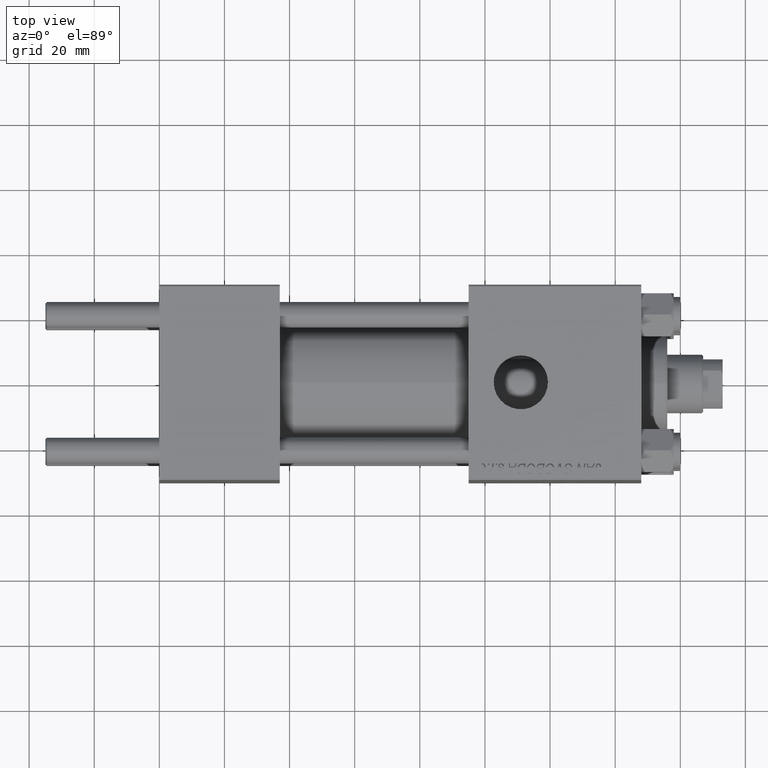
[diagram: clean part render]
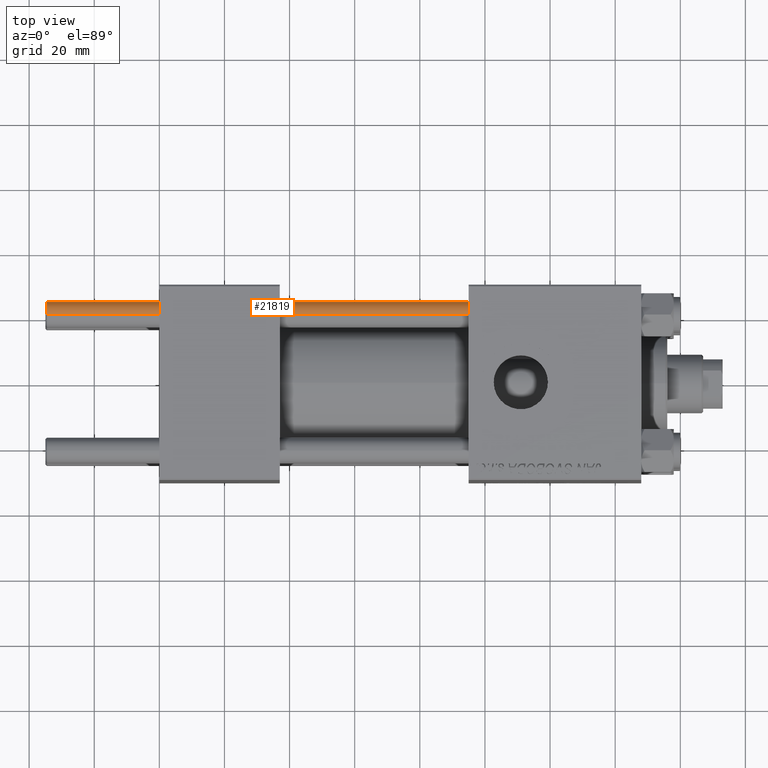
[diagram: same view with one face highlighted and labeled with its STEP entity id]
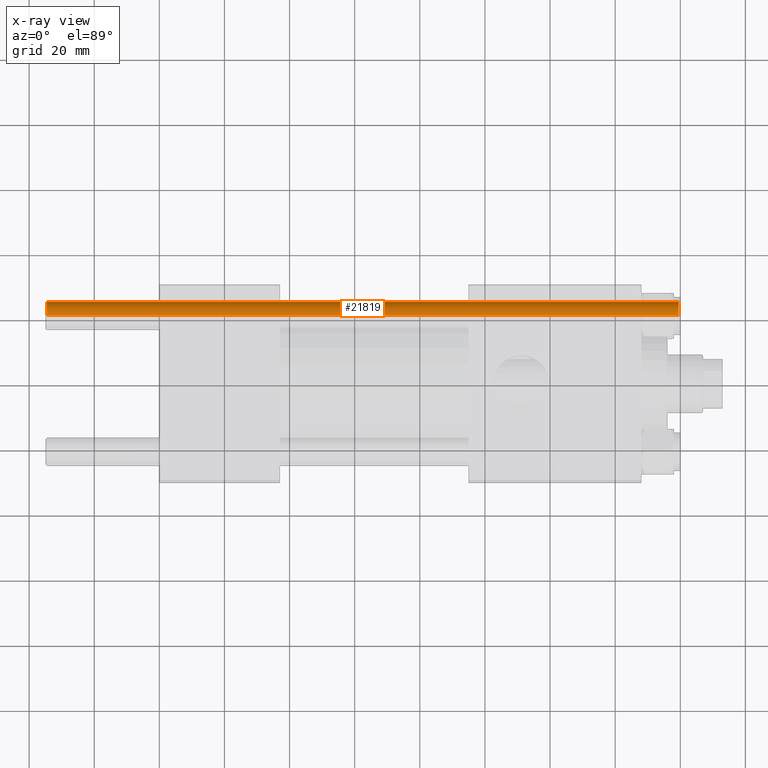
[diagram: x-ray of the same camera — body ghosted, the highlighted face saturated]
A machine part, top view. The second image highlights one B-rep face of the part: STEP entity #21819.
The next image is the same camera in x-ray: the body ghosted, the highlighted face saturated — about 0% of this face is hidden behind the body in this view.
In plain terms, the highlighted cylindrical surface (edge-blend (fillet) strip) has radius 4 mm, axis along (-1, -0, -0).
Its self-contained STEP definition (entity closure, byte-faithful):
#79 = DIRECTION ( 'NONE',  ( -0.000000000000000000, -0.000000000000000000, -1.000000000000000000 ) ) ;
#276 = DIRECTION ( 'NONE',  ( 0.000000000000000000, 0.000000000000000000, -1.000000000000000000 ) ) ;
#305 = DIRECTION ( 'NONE',  ( 1.000000000000000000, 0.000000000000000000, 0.000000000000000000 ) ) ;
#3364 = CYLINDRICAL_SURFACE ( 'NONE', #30611, 4.000000000000000000 ) ;
#3520 = CARTESIAN_POINT ( 'NONE',  ( -4.000000000000000000, 0.000000000000000000, 194.5000000000000568 ) ) ;
#3606 = DIRECTION ( 'NONE',  ( -0.000000000000000000, -0.000000000000000000, -1.000000000000000000 ) ) ;
#4097 = DIRECTION ( 'NONE',  ( -0.000000000000000000, -0.000000000000000000, 1.000000000000000000 ) ) ;
#5806 = CARTESIAN_POINT ( 'NONE',  ( 4.000000000000000000, 4.898587196589412829E-16, 0.5000000000000004441 ) ) ;
#7042 = ORIENTED_EDGE ( 'NONE', *, *, #14405, .T. ) ;
#9087 = AXIS2_PLACEMENT_3D ( 'NONE', #38413, #4097, #305 ) ;
#9527 = VERTEX_POINT ( 'NONE', #28510 ) ;
#12066 = VECTOR ( 'NONE', #79, 1000.000000000000000 ) ;
#13018 = CARTESIAN_POINT ( 'NONE',  ( -4.000000000000000000, 0.000000000000000000, 195.0000000000000000 ) ) ;
#13979 = ORIENTED_EDGE ( 'NONE', *, *, #38193, .T. ) ;
#14405 = EDGE_CURVE ( 'NONE', #37173, #35568, #19259, .T. ) ;
#15227 = DIRECTION ( 'NONE',  ( -1.000000000000000000, 0.000000000000000000, 0.000000000000000000 ) ) ;
#15396 = EDGE_LOOP ( 'NONE', ( #13979, #7042, #31900, #42147 ) ) ;
#17778 = DIRECTION ( 'NONE',  ( -0.000000000000000000, -0.000000000000000000, -1.000000000000000000 ) ) ;
#18968 = AXIS2_PLACEMENT_3D ( 'NONE', #34851, #276, #42424 ) ;
#19259 = LINE ( 'NONE', #34654, #12066 ) ;
#21819 = ADVANCED_FACE ( 'NONE', ( #45751 ), #3364, .T. ) ;
#26284 = EDGE_CURVE ( 'NONE', #27846, #9527, #33162, .T. ) ;
#27846 = VERTEX_POINT ( 'NONE', #3520 ) ;
#28422 = CIRCLE ( 'NONE', #9087, 4.000000000000000000 ) ;
#28510 = CARTESIAN_POINT ( 'NONE',  ( -4.000000000000000000, 0.000000000000000000, 0.5000000000000004441 ) ) ;
#30611 = AXIS2_PLACEMENT_3D ( 'NONE', #41969, #3606, #15227 ) ;
#31475 = EDGE_CURVE ( 'NONE', #35568, #9527, #28422, .T. ) ;
#31900 = ORIENTED_EDGE ( 'NONE', *, *, #31475, .T. ) ;
#33162 = LINE ( 'NONE', #13018, #40439 ) ;
#33790 = CARTESIAN_POINT ( 'NONE',  ( 4.000000000000000000, 4.898587196589412829E-16, 194.5000000000000568 ) ) ;
#34654 = CARTESIAN_POINT ( 'NONE',  ( 4.000000000000000000, 4.898587196589412829E-16, 195.0000000000000000 ) ) ;
#34851 = CARTESIAN_POINT ( 'NONE',  ( 0.000000000000000000, 0.000000000000000000, 194.5000000000000568 ) ) ;
#35568 = VERTEX_POINT ( 'NONE', #5806 ) ;
#37173 = VERTEX_POINT ( 'NONE', #33790 ) ;
#38193 = EDGE_CURVE ( 'NONE', #27846, #37173, #49590, .T. ) ;
#38413 = CARTESIAN_POINT ( 'NONE',  ( 0.000000000000000000, 0.000000000000000000, 0.5000000000000004441 ) ) ;
#40439 = VECTOR ( 'NONE', #17778, 1000.000000000000000 ) ;
#41969 = CARTESIAN_POINT ( 'NONE',  ( 0.000000000000000000, 0.000000000000000000, 195.0000000000000000 ) ) ;
#42147 = ORIENTED_EDGE ( 'NONE', *, *, #26284, .F. ) ;
#42424 = DIRECTION ( 'NONE',  ( 1.000000000000000000, 0.000000000000000000, 0.000000000000000000 ) ) ;
#45751 = FACE_OUTER_BOUND ( 'NONE', #15396, .T. ) ;
#49590 = CIRCLE ( 'NONE', #18968, 4.000000000000000000 ) ;